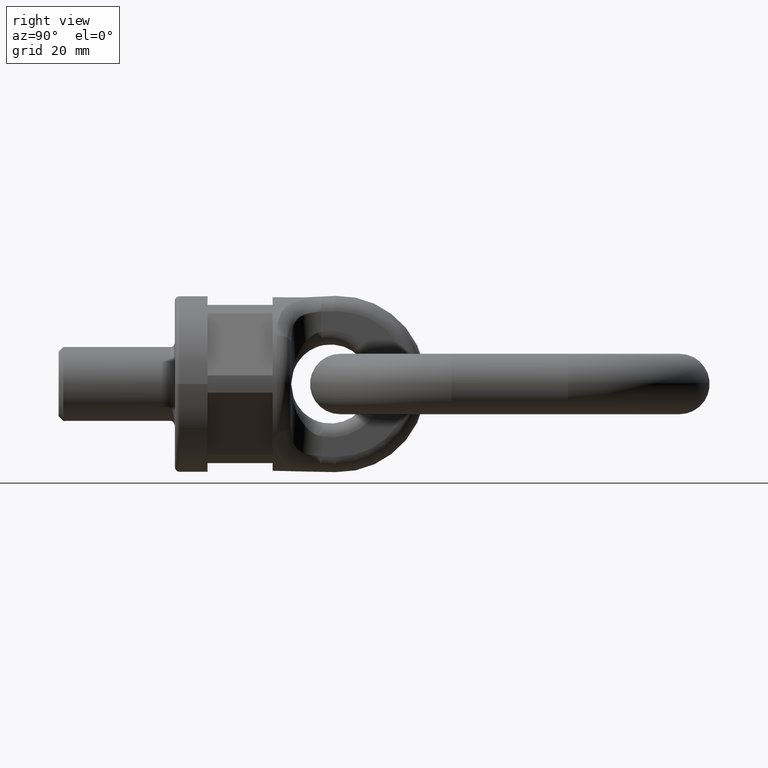
[diagram: clean part render]
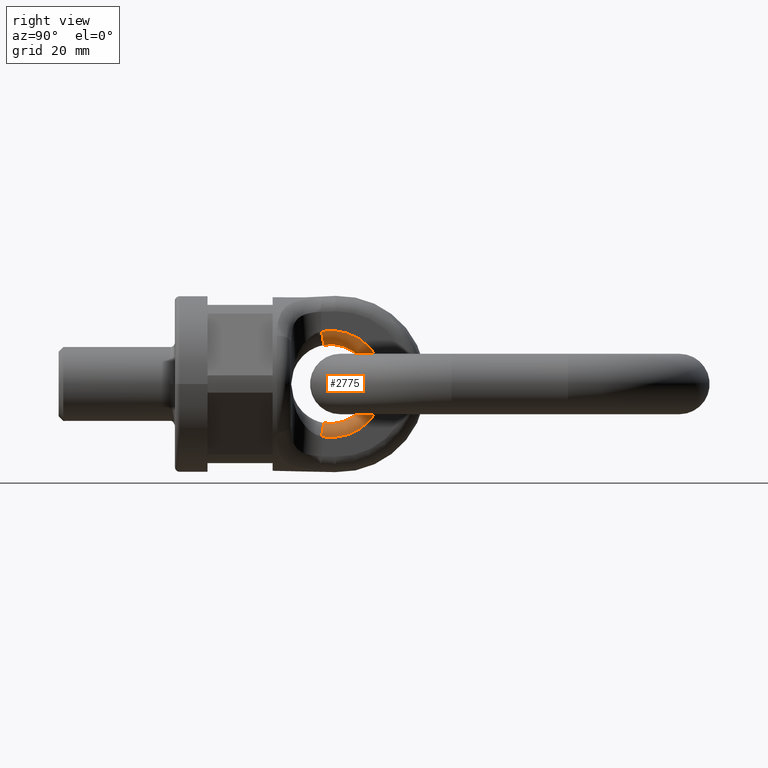
[diagram: same view with one face highlighted and labeled with its STEP entity id]
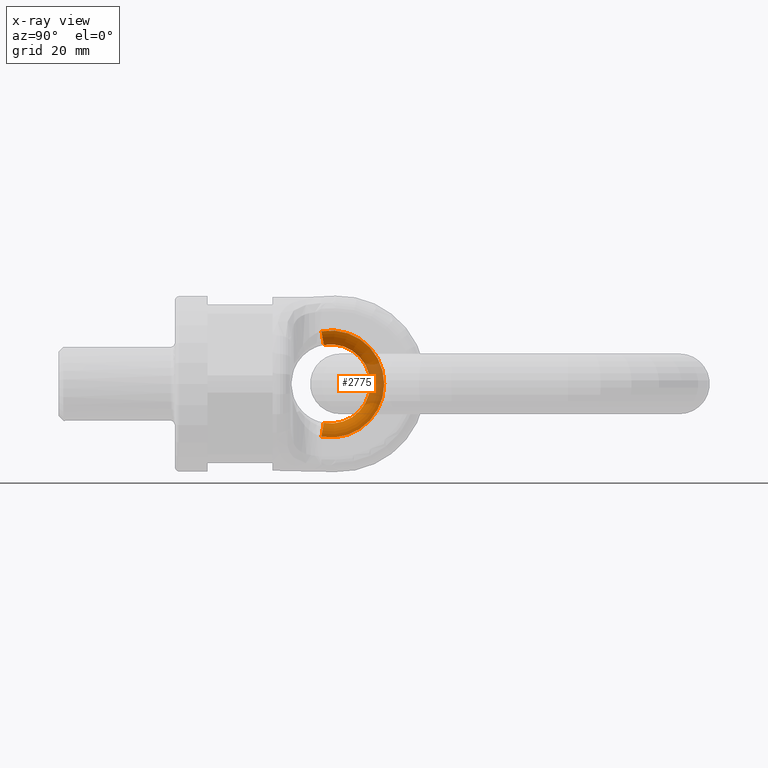
[diagram: x-ray of the same camera — body ghosted, the highlighted face saturated]
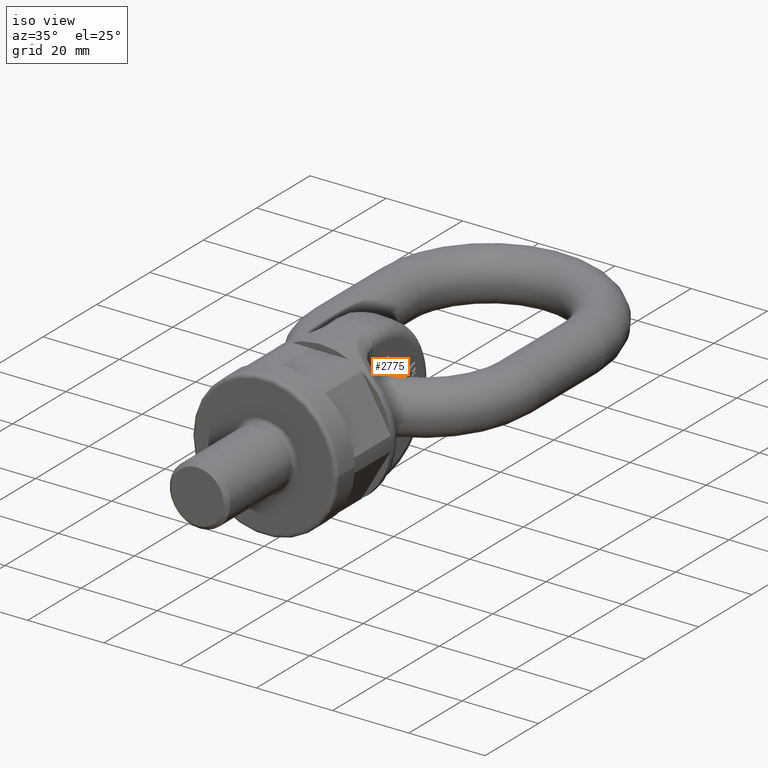
[diagram: same view with one face highlighted and labeled with its STEP entity id]
A machine part, right view. The second image highlights one B-rep face of the part: STEP entity #2775.
The next image is the same camera in x-ray: the body ghosted, the highlighted face saturated — about 26% of this face is hidden behind the body in this view.
A second angle (iso view) of the same face is appended — the face is thin or edge-on in the first view.
In plain terms, the highlighted toroidal blend (fillet) surface has major radius 11.5 mm and minor (blend) radius 3 mm.
Its self-contained STEP definition (entity closure, byte-faithful):
#1800=TOROIDAL_SURFACE('',#5728,11.5,3.);
#1919=FACE_OUTER_BOUND('',#3219,.T.);
#2775=ADVANCED_FACE('',(#1919),#1800,.T.);
#3219=EDGE_LOOP('',(#3991,#3992,#3993,#3994));
#3991=ORIENTED_EDGE('',*,*,#5267,.T.);
#3992=ORIENTED_EDGE('',*,*,#5009,.F.);
#3993=ORIENTED_EDGE('',*,*,#5268,.F.);
#3994=ORIENTED_EDGE('',*,*,#5082,.F.);
#4599=VERTEX_POINT('',#6790);
#4600=VERTEX_POINT('',#6792);
#4666=VERTEX_POINT('',#7102);
#4667=VERTEX_POINT('',#7103);
#5009=EDGE_CURVE('',#4599,#4600,#5559,.T.);
#5082=EDGE_CURVE('',#4666,#4667,#5569,.T.);
#5267=EDGE_CURVE('',#4666,#4600,#5580,.T.);
#5268=EDGE_CURVE('',#4667,#4599,#5581,.T.);
#5559=CIRCLE('',#5647,11.5);
#5569=CIRCLE('',#5664,8.5);
#5580=CIRCLE('',#5726,3.);
#5581=CIRCLE('',#5727,3.);
#5647=AXIS2_PLACEMENT_3D('',#6791,#5928,#5929);
#5664=AXIS2_PLACEMENT_3D('',#7101,#5991,#5992);
#5726=AXIS2_PLACEMENT_3D('',#8204,#6241,#6242);
#5727=AXIS2_PLACEMENT_3D('',#8229,#6243,#6244);
#5728=AXIS2_PLACEMENT_3D('',#8230,#6245,#6246);
#5928=DIRECTION('',(-1.,3.58908305374512E-16,0.));
#5929=DIRECTION('',(3.77113799125393E-16,1.,0.));
#5991=DIRECTION('',(1.,-3.58908305374512E-16,0.));
#5992=DIRECTION('',(3.57148950936401E-16,1.,0.));
#6241=DIRECTION('',(0.,0.984761013296185,-0.17391304347826));
#6242=DIRECTION('',(0.,0.17391304347826,0.984761013296185));
#6243=DIRECTION('',(-1.00563679766771E-16,-0.984761013296185,-0.17391304347826));
#6244=DIRECTION('',(0.,0.17391304347826,-0.984761013296185));
#6245=DIRECTION('',(1.,-3.58908305374512E-16,0.));
#6246=DIRECTION('',(3.58908305374512E-16,1.,0.));
#6790=CARTESIAN_POINT('',(6.5,31.5,11.3247516529061));
#6791=CARTESIAN_POINT('',(6.5,33.5,0.));
#6792=CARTESIAN_POINT('',(6.5,31.5,-11.3247516529061));
#7101=CARTESIAN_POINT('',(3.5,33.5,0.));
#7102=CARTESIAN_POINT('',(3.5,32.0217391304348,-8.37046861301757));
#7103=CARTESIAN_POINT('',(3.5,32.0217391304348,8.37046861301757));
#8204=CARTESIAN_POINT('',(3.5,31.5,-11.3247516529061));
#8229=CARTESIAN_POINT('',(3.5,31.5,11.3247516529061));
#8230=CARTESIAN_POINT('',(3.5,33.5,0.));